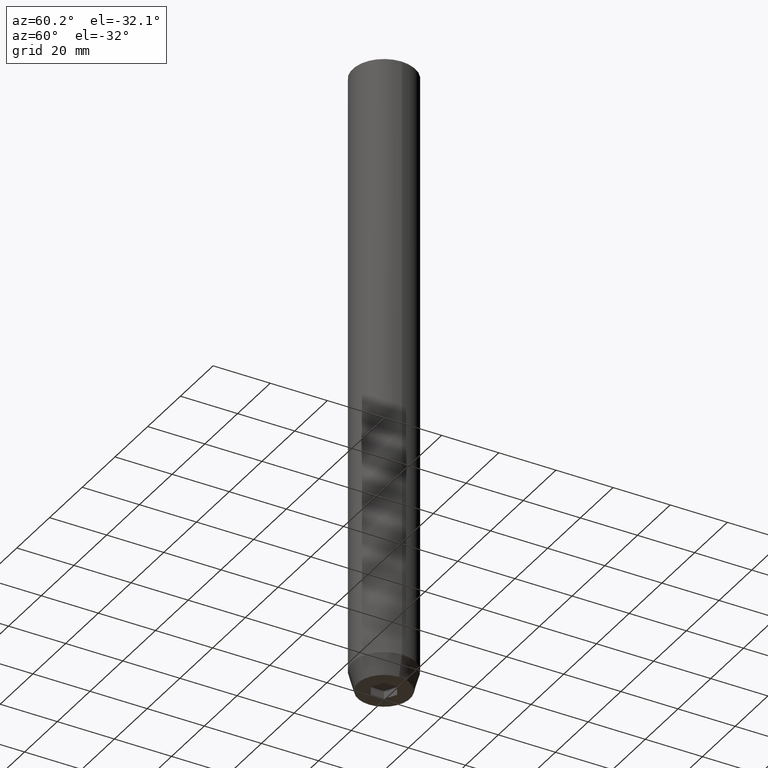
[diagram: clean part render]
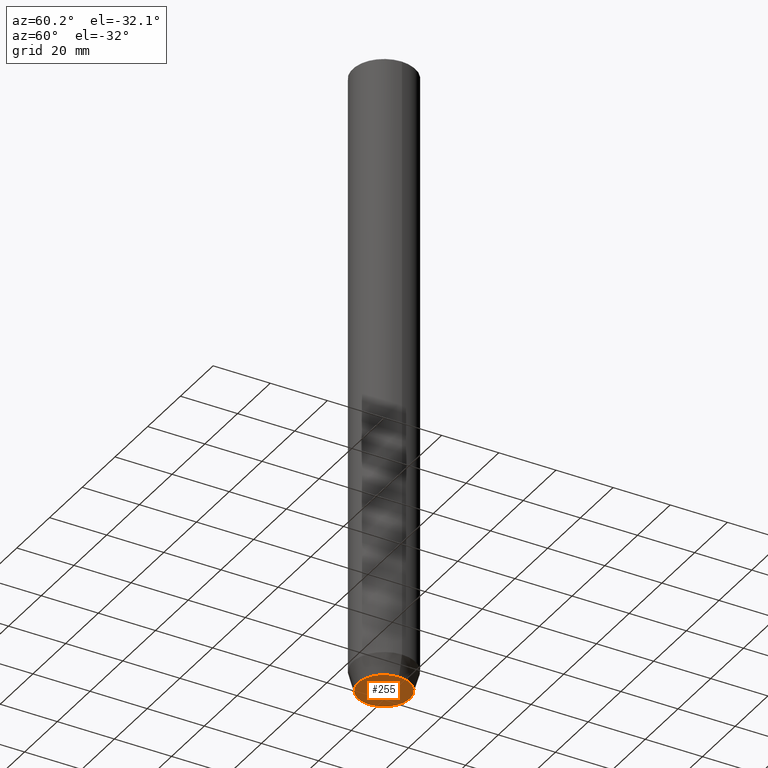
[diagram: same view with one face highlighted and labeled with its STEP entity id]
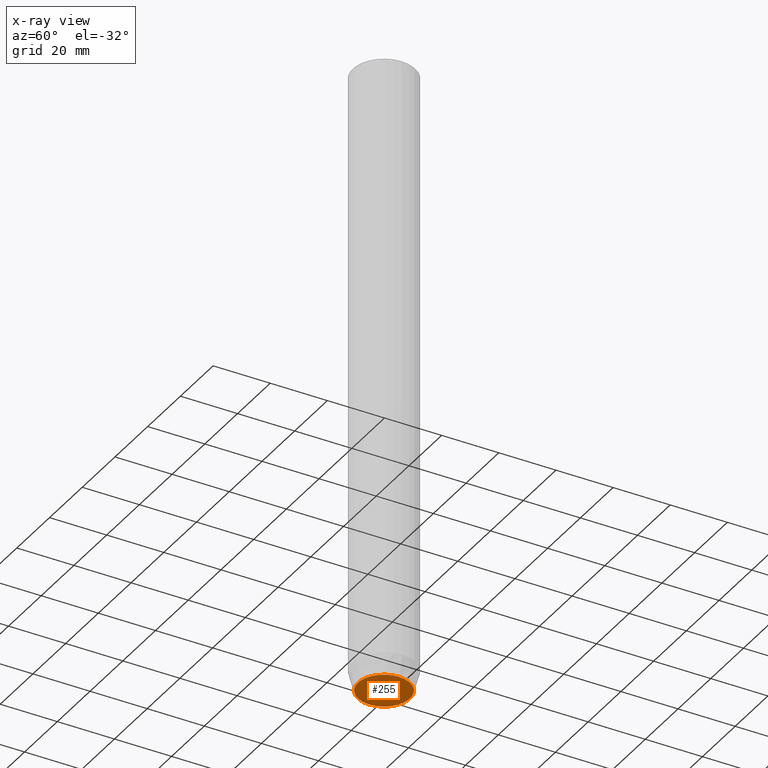
[diagram: x-ray of the same camera — body ghosted, the highlighted face saturated]
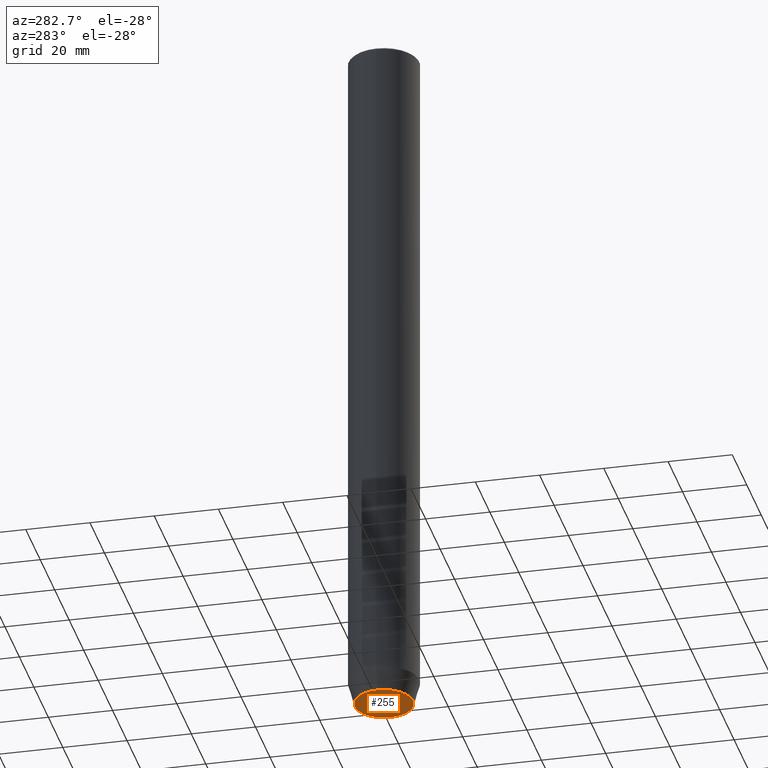
[diagram: same view with one face highlighted and labeled with its STEP entity id]
A machine part, auxiliary view. The second image highlights one B-rep face of the part: STEP entity #255.
The next image is the same camera in x-ray: the body ghosted, the highlighted face saturated — about 0% of this face is hidden behind the body in this view.
A second angle (auxiliary view) of the same face is appended — the face is thin or edge-on in the first view.
In plain terms, the highlighted planar face has unit normal (0, 0, -1).
Its self-contained STEP definition (entity closure, byte-faithful):
#46 = ORIENTED_EDGE ( 'NONE', *, *, #345, .F. ) ;
#48 = DIRECTION ( 'NONE',  ( -0.8660254037844384856, -0.5000000000000002220, 0.000000000000000000 ) ) ;
#51 = CARTESIAN_POINT ( 'NONE',  ( -2.000000000000000000, 3.464101615137754830, -220.0000000000000000 ) ) ;
#60 = CARTESIAN_POINT ( 'NONE',  ( 9.124355652982126585, 0.000000000000000000, -220.0000000000000000 ) ) ;
#66 = CIRCLE ( 'NONE', #176, 9.124355652982126585 ) ;
#74 = ORIENTED_EDGE ( 'NONE', *, *, #327, .F. ) ;
#77 = ORIENTED_EDGE ( 'NONE', *, *, #404, .F. ) ;
#79 = CARTESIAN_POINT ( 'NONE',  ( -9.124355652982126585, 1.232261386766375113E-15, -220.0000000000000000 ) ) ;
#82 = DIRECTION ( 'NONE',  ( -0.8660254037844384856, 0.5000000000000002220, 0.000000000000000000 ) ) ;
#109 = CARTESIAN_POINT ( 'NONE',  ( 0.000000000000000000, 9.124355652982126585, -220.0000000000000000 ) ) ;
#113 = VERTEX_POINT ( 'NONE', #502 ) ;
#115 = ORIENTED_EDGE ( 'NONE', *, *, #485, .F. ) ;
#124 = CARTESIAN_POINT ( 'NONE',  ( 2.000000000000000444, 3.464101615137754386, -220.0000000000000000 ) ) ;
#139 = VECTOR ( 'NONE', #155, 1000.000000000000000 ) ;
#141 = AXIS2_PLACEMENT_3D ( 'NONE', #109, #558, #259 ) ;
#143 = CARTESIAN_POINT ( 'NONE',  ( -4.000000000000000000, -2.309401076758503368, -220.0000000000000000 ) ) ;
#155 = DIRECTION ( 'NONE',  ( 0.8660254037844385966, -0.5000000000000001110, 0.000000000000000000 ) ) ;
#159 = ORIENTED_EDGE ( 'NONE', *, *, #379, .F. ) ;
#170 = LINE ( 'NONE', #340, #376 ) ;
#174 = PLANE ( 'NONE',  #141 ) ;
#175 = VECTOR ( 'NONE', #323, 1000.000000000000000 ) ;
#176 = AXIS2_PLACEMENT_3D ( 'NONE', #197, #563, #471 ) ;
#177 = VERTEX_POINT ( 'NONE', #143 ) ;
#179 = ORIENTED_EDGE ( 'NONE', *, *, #554, .F. ) ;
#184 = DIRECTION ( 'NONE',  ( 0.8660254037844387076, 0.5000000000000001110, 0.000000000000000000 ) ) ;
#197 = CARTESIAN_POINT ( 'NONE',  ( 0.000000000000000000, 0.000000000000000000, -220.0000000000000000 ) ) ;
#209 = CARTESIAN_POINT ( 'NONE',  ( 2.168404344971008868E-16, 4.618802153517006737, -220.0000000000000000 ) ) ;
#223 = CARTESIAN_POINT ( 'NONE',  ( 0.000000000000000000, 0.000000000000000000, -220.0000000000000000 ) ) ;
#226 = VERTEX_POINT ( 'NONE', #79 ) ;
#227 = LINE ( 'NONE', #498, #175 ) ;
#235 = CARTESIAN_POINT ( 'NONE',  ( 4.000000000000000000, 0.000000000000000000, -220.0000000000000000 ) ) ;
#243 = DIRECTION ( 'NONE',  ( 1.000000000000000000, 0.000000000000000000, 0.000000000000000000 ) ) ;
#255 = ADVANCED_FACE ( 'NONE', ( #520, #560 ), #174, .T. ) ;
#259 = DIRECTION ( 'NONE',  ( -1.000000000000000000, 0.000000000000000000, -0.000000000000000000 ) ) ;
#266 = CARTESIAN_POINT ( 'NONE',  ( 2.000000000000000888, -3.464101615137754386, -220.0000000000000000 ) ) ;
#272 = VERTEX_POINT ( 'NONE', #60 ) ;
#273 = LINE ( 'NONE', #51, #525 ) ;
#289 = VERTEX_POINT ( 'NONE', #448 ) ;
#316 = VERTEX_POINT ( 'NONE', #209 ) ;
#323 = DIRECTION ( 'NONE',  ( 0.000000000000000000, 1.000000000000000000, 0.000000000000000000 ) ) ;
#327 = EDGE_CURVE ( 'NONE', #113, #177, #170, .T. ) ;
#334 = VECTOR ( 'NONE', #582, 1000.000000000000000 ) ;
#340 = CARTESIAN_POINT ( 'NONE',  ( -2.000000000000000888, -3.464101615137754386, -220.0000000000000000 ) ) ;
#345 = EDGE_CURVE ( 'NONE', #316, #479, #523, .T. ) ;
#360 = ORIENTED_EDGE ( 'NONE', *, *, #391, .F. ) ;
#372 = LINE ( 'NONE', #235, #334 ) ;
#376 = VECTOR ( 'NONE', #82, 1000.000000000000114 ) ;
#379 = EDGE_CURVE ( 'NONE', #289, #316, #273, .T. ) ;
#391 = EDGE_CURVE ( 'NONE', #177, #289, #227, .T. ) ;
#404 = EDGE_CURVE ( 'NONE', #479, #476, #372, .T. ) ;
#406 = DIRECTION ( 'NONE',  ( -0.000000000000000000, -0.000000000000000000, 1.000000000000000000 ) ) ;
#430 = EDGE_CURVE ( 'NONE', #476, #113, #585, .T. ) ;
#445 = CIRCLE ( 'NONE', #464, 9.124355652982126585 ) ;
#448 = CARTESIAN_POINT ( 'NONE',  ( -4.000000000000000000, 2.309401076758503368, -220.0000000000000000 ) ) ;
#464 = AXIS2_PLACEMENT_3D ( 'NONE', #223, #406, #243 ) ;
#471 = DIRECTION ( 'NONE',  ( 1.000000000000000000, 0.000000000000000000, 0.000000000000000000 ) ) ;
#476 = VERTEX_POINT ( 'NONE', #549 ) ;
#479 = VERTEX_POINT ( 'NONE', #543 ) ;
#485 = EDGE_CURVE ( 'NONE', #226, #272, #445, .T. ) ;
#487 = VECTOR ( 'NONE', #48, 1000.000000000000114 ) ;
#498 = CARTESIAN_POINT ( 'NONE',  ( -4.000000000000000000, 0.000000000000000000, -220.0000000000000000 ) ) ;
#502 = CARTESIAN_POINT ( 'NONE',  ( 4.336808689942017736E-16, -4.618802153517006737, -220.0000000000000000 ) ) ;
#520 = FACE_BOUND ( 'NONE', #529, .T. ) ;
#523 = LINE ( 'NONE', #124, #139 ) ;
#524 = EDGE_LOOP ( 'NONE', ( #179, #115 ) ) ;
#525 = VECTOR ( 'NONE', #184, 999.9999999999998863 ) ;
#529 = EDGE_LOOP ( 'NONE', ( #159, #360, #74, #542, #77, #46 ) ) ;
#542 = ORIENTED_EDGE ( 'NONE', *, *, #430, .F. ) ;
#543 = CARTESIAN_POINT ( 'NONE',  ( 4.000000000000000000, 2.309401076758503368, -220.0000000000000000 ) ) ;
#549 = CARTESIAN_POINT ( 'NONE',  ( 4.000000000000000000, -2.309401076758502480, -220.0000000000000000 ) ) ;
#554 = EDGE_CURVE ( 'NONE', #272, #226, #66, .T. ) ;
#558 = DIRECTION ( 'NONE',  ( 0.000000000000000000, 0.000000000000000000, -1.000000000000000000 ) ) ;
#560 = FACE_OUTER_BOUND ( 'NONE', #524, .T. ) ;
#563 = DIRECTION ( 'NONE',  ( -0.000000000000000000, -0.000000000000000000, 1.000000000000000000 ) ) ;
#582 = DIRECTION ( 'NONE',  ( 0.000000000000000000, -1.000000000000000000, 0.000000000000000000 ) ) ;
#585 = LINE ( 'NONE', #266, #487 ) ;